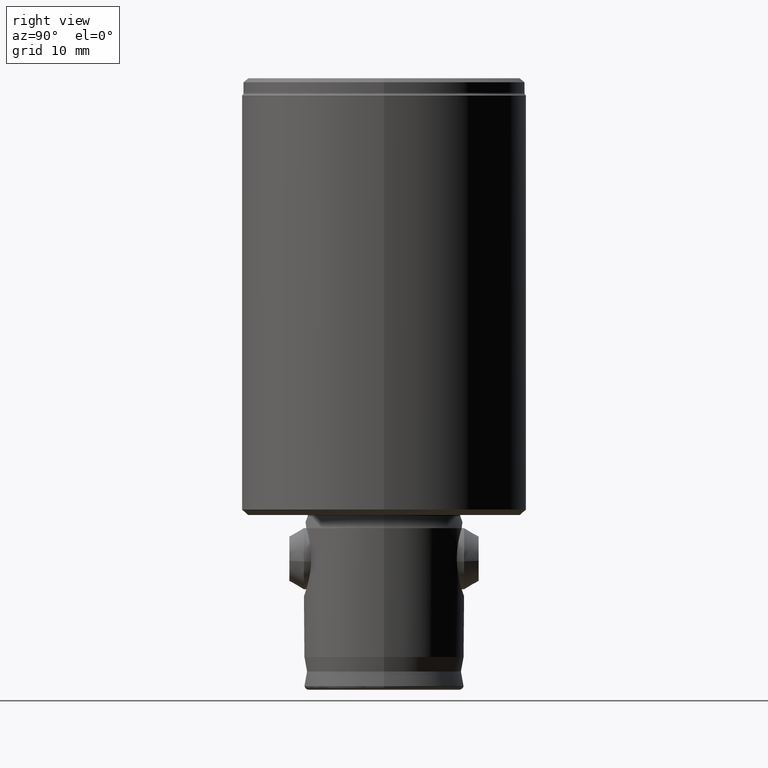
[diagram: clean part render]
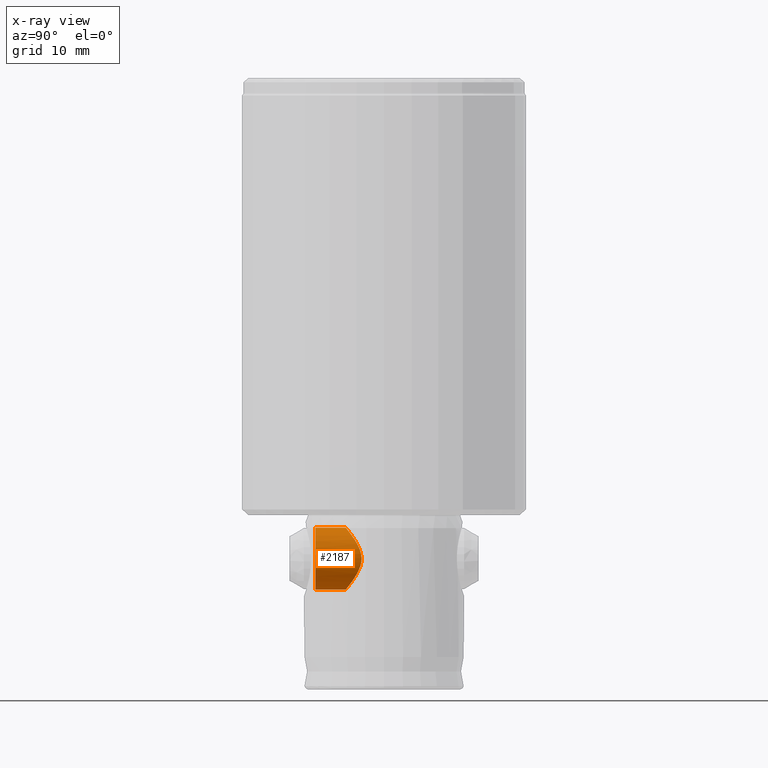
[diagram: x-ray — body ghosted, one internal face saturated and labeled with its STEP entity id]
A machine part, right view, then the same camera in x-ray: the body is ghosted and one INTERNAL B-rep face — a face not visible from any outside direction — is saturated and labeled: STEP entity #2187.
In plain terms, the highlighted cylindrical surface (edge-blend (fillet) strip) has radius 4.25 mm, axis along (0, 1, 0).
Its self-contained STEP definition (entity closure, byte-faithful):
#12 = CARTESIAN_POINT ( 'NONE',  ( 0.0000000000000000000, -9.449999999999985100, 70.25000000000000000 ) ) ;
#24 = VECTOR ( 'NONE', #2691, 1000.000000000000000 ) ;
#27 = CARTESIAN_POINT ( 'NONE',  ( -3.805140007228206200, -3.620558081587466500, 64.08790877519720700 ) ) ;
#43 = CARTESIAN_POINT ( 'NONE',  ( -3.802555898585062300, -3.623358960912436400, 67.91765052075953700 ) ) ;
#76 = EDGE_CURVE ( 'NONE', #950, #3685, #209, .T. ) ;
#188 = VECTOR ( 'NONE', #3668, 1000.000000000000000 ) ;
#209 = CIRCLE ( 'NONE', #4117, 4.250000000000003600 ) ;
#258 = DIRECTION ( 'NONE',  ( 0.0000000000000000000, 0.0000000000000000000, 1.000000000000000000 ) ) ;
#349 = AXIS2_PLACEMENT_3D ( 'NONE', #3172, #3155, #258 ) ;
#387 = CARTESIAN_POINT ( 'NONE',  ( -4.101942360848347000, -3.278067156894407800, 64.85190301792920300 ) ) ;
#410 = CARTESIAN_POINT ( 'NONE',  ( -3.384016203500814800, -4.018675673284333200, 68.58447498907671000 ) ) ;
#598 = B_SPLINE_CURVE_WITH_KNOTS ( 'NONE', 3,
 ( #2911, #1801, #2555, #743, #3289, #1102, #3672, #1478, #4028, #1834, #4402, #2197, #27, #2566, #387, #2927, #757, #3305, #1121, #3691, #1492, #4044, #1849, #4417, #2218, #43, #2590, #410, #2943, #778, #3324, #1139, #3709, #1517, #4058, #1869, #4441, #2233 ),
 .UNSPECIFIED., .F., .F.,
 ( 4, 2, 2, 2, 2, 2, 2, 2, 2, 2, 2, 2, 2, 2, 2, 2, 2, 2, 4 ),
 ( 0.01410543836558498600, 0.01498550517642567200, 0.01586557198726635700, 0.01674563879810704200, 0.01762570560894774100, 0.01850577241978843700, 0.01938583923062913200, 0.02026590604146983100, 0.02070593944689017700, 0.02114597285231052700, 0.02158600625773087600, 0.02202603966315122600, 0.02290610647399195900, 0.02378617328483269600, 0.02466624009567343300, 0.02554630690651416700, 0.02642637371735490800, 0.02730644052819564100, 0.02818650733903637800 ),
 .UNSPECIFIED. ) ;
#683 = EDGE_LOOP ( 'NONE', ( #999, #704, #1131, #1036 ) ) ;
#704 = ORIENTED_EDGE ( 'NONE', *, *, #3238, .T. ) ;
#726 = EDGE_CURVE ( 'NONE', #3685, #4709, #1968, .T. ) ;
#743 = CARTESIAN_POINT ( 'NONE',  ( -1.161812761381823700, -5.127953066911848300, 61.90156377740974800 ) ) ;
#757 = CARTESIAN_POINT ( 'NONE',  ( -4.211957720820634200, -3.134097915560381000, 65.41391805149531500 ) ) ;
#778 = CARTESIAN_POINT ( 'NONE',  ( -2.845765303101119900, -4.417718641411966900, 69.16778475850624400 ) ) ;
#950 = VERTEX_POINT ( 'NONE', #1698 ) ;
#999 = ORIENTED_EDGE ( 'NONE', *, *, #76, .F. ) ;
#1036 = ORIENTED_EDGE ( 'NONE', *, *, #726, .F. ) ;
#1096 = CARTESIAN_POINT ( 'NONE',  ( 5.204748896376254600E-016, -12.50000000000000000, 61.75000000000000000 ) ) ;
#1102 = CARTESIAN_POINT ( 'NONE',  ( -1.956577178225412900, -4.879471193580222600, 62.21659654320388500 ) ) ;
#1121 = CARTESIAN_POINT ( 'NONE',  ( -4.250122289926452800, -3.082038378269760200, 65.85609129833709100 ) ) ;
#1131 = ORIENTED_EDGE ( 'NONE', *, *, #1736, .T. ) ;
#1139 = CARTESIAN_POINT ( 'NONE',  ( -2.200958254134847800, -4.772874321613086200, 69.64562951974248500 ) ) ;
#1272 = CARTESIAN_POINT ( 'NONE',  ( 5.204752558545803100E-016, -5.249999999999987600, 61.75000000000000000 ) ) ;
#1439 = DIRECTION ( 'NONE',  ( 0.0000000000000000000, 1.000000000000000000, 0.0000000000000000000 ) ) ;
#1478 = CARTESIAN_POINT ( 'NONE',  ( -2.646459113657080300, -4.541240218687322600, 62.66331183352998100 ) ) ;
#1492 = CARTESIAN_POINT ( 'NONE',  ( -4.242097722270847800, -3.093180995056913600, 66.29753214740227900 ) ) ;
#1517 = CARTESIAN_POINT ( 'NONE',  ( -1.440018767704617000, -5.056134978504653400, 70.00867428595493900 ) ) ;
#1636 = CYLINDRICAL_SURFACE ( 'NONE', #349, 4.250000000000003600 ) ;
#1698 = CARTESIAN_POINT ( 'NONE',  ( 5.204748896376254600E-016, -9.449999999999985100, 61.75000000000000000 ) ) ;
#1736 = EDGE_CURVE ( 'NONE', #2051, #4709, #598, .T. ) ;
#1801 = CARTESIAN_POINT ( 'NONE',  ( -0.2938922589299744500, -5.249999999999988500, 61.74999999999997900 ) ) ;
#1834 = CARTESIAN_POINT ( 'NONE',  ( -3.218257064172426000, -4.154058835936596400, 63.21173248952477800 ) ) ;
#1849 = CARTESIAN_POINT ( 'NONE',  ( -4.188561257034566100, -3.165560579156568200, 66.73408338996000600 ) ) ;
#1869 = CARTESIAN_POINT ( 'NONE',  ( -0.5969456275745720400, -5.223984282207726300, 70.21797508858057300 ) ) ;
#1968 = LINE ( 'NONE', #4111, #24 ) ;
#2051 = VERTEX_POINT ( 'NONE', #1272 ) ;
#2187 = ADVANCED_FACE ( 'NONE', ( #2919 ), #1636, .F. ) ;
#2197 = CARTESIAN_POINT ( 'NONE',  ( -3.678832312834453800, -3.750799608839240100, 63.85545249885393600 ) ) ;
#2218 = CARTESIAN_POINT ( 'NONE',  ( -4.016393790635532000, -3.384781003260456200, 67.41611998085534200 ) ) ;
#2233 = CARTESIAN_POINT ( 'NONE',  ( -1.482028773410044900E-016, -5.249999999999987600, 70.25000000000000000 ) ) ;
#2555 = CARTESIAN_POINT ( 'NONE',  ( -0.5929985923406686500, -5.224372136289898300, 61.78154755477421400 ) ) ;
#2566 = CARTESIAN_POINT ( 'NONE',  ( -4.016253542323914500, -3.384854321906273000, 64.58405833088112000 ) ) ;
#2590 = CARTESIAN_POINT ( 'NONE',  ( -3.675707211355440300, -3.753730987829702900, 68.14947740883887700 ) ) ;
#2691 = DIRECTION ( 'NONE',  ( 0.0000000000000000000, 1.000000000000000000, 0.0000000000000000000 ) ) ;
#2911 = CARTESIAN_POINT ( 'NONE',  ( 5.204752558545803100E-016, -5.249999999999987600, 61.75000000000000000 ) ) ;
#2919 = FACE_OUTER_BOUND ( 'NONE', #683, .T. ) ;
#2927 = CARTESIAN_POINT ( 'NONE',  ( -4.189486154962600600, -3.164331621620047700, 65.27123720569224500 ) ) ;
#2943 = CARTESIAN_POINT ( 'NONE',  ( -3.218503548396092700, -4.154016497797617700, 68.78827461802463000 ) ) ;
#2954 = LINE ( 'NONE', #1096, #188 ) ;
#3147 = CARTESIAN_POINT ( 'NONE',  ( -1.482028773410044900E-016, -5.249999999999987600, 70.25000000000000000 ) ) ;
#3155 = DIRECTION ( 'NONE',  ( 0.0000000000000000000, 1.000000000000000000, 0.0000000000000000000 ) ) ;
#3172 = CARTESIAN_POINT ( 'NONE',  ( 0.0000000000000000000, -12.50000000000000000, 66.00000000000000000 ) ) ;
#3238 = EDGE_CURVE ( 'NONE', #950, #2051, #2954, .T. ) ;
#3289 = CARTESIAN_POINT ( 'NONE',  ( -1.438507202315987300, -5.056493885313891200, 61.99088126889034100 ) ) ;
#3305 = CARTESIAN_POINT ( 'NONE',  ( -4.242372805655344700, -3.092803027051105800, 65.70614141125429300 ) ) ;
#3324 = CARTESIAN_POINT ( 'NONE',  ( -2.642961415414695600, -4.543049799747636000, 69.33909969726735800 ) ) ;
#3636 = DIRECTION ( 'NONE',  ( 0.0000000000000000000, 0.0000000000000000000, 1.000000000000000000 ) ) ;
#3668 = DIRECTION ( 'NONE',  ( 0.0000000000000000000, 1.000000000000000000, 0.0000000000000000000 ) ) ;
#3672 = CARTESIAN_POINT ( 'NONE',  ( -2.197163833811852700, -4.774838180658177200, 62.35175318160779100 ) ) ;
#3685 = VERTEX_POINT ( 'NONE', #12 ) ;
#3691 = CARTESIAN_POINT ( 'NONE',  ( -4.249874715765452400, -3.082379753494835000, 66.15104335153026200 ) ) ;
#3709 = CARTESIAN_POINT ( 'NONE',  ( -1.960480188576818800, -4.877978310980641800, 69.78148661407333000 ) ) ;
#3994 = CARTESIAN_POINT ( 'NONE',  ( 0.0000000000000000000, -9.449999999999985100, 66.00000000000000000 ) ) ;
#4028 = CARTESIAN_POINT ( 'NONE',  ( -2.850084714601808700, -4.414793365845310900, 62.83635789624356200 ) ) ;
#4044 = CARTESIAN_POINT ( 'NONE',  ( -4.211582089719495800, -3.134603332964277700, 66.58863805992078300 ) ) ;
#4058 = CARTESIAN_POINT ( 'NONE',  ( -1.167863983061270500, -5.126641159677748600, 70.09679773081792600 ) ) ;
#4111 = CARTESIAN_POINT ( 'NONE',  ( 0.0000000000000000000, -12.50000000000000000, 70.25000000000000000 ) ) ;
#4117 = AXIS2_PLACEMENT_3D ( 'NONE', #3994, #1439, #3636 ) ;
#4402 = CARTESIAN_POINT ( 'NONE',  ( -3.383555643189605000, -4.019185999809322700, 63.41457114194440700 ) ) ;
#4417 = CARTESIAN_POINT ( 'NONE',  ( -4.100398918673254100, -3.280016073849001800, 67.15365680214168300 ) ) ;
#4441 = CARTESIAN_POINT ( 'NONE',  ( -0.2982891365068985300, -5.249999999999991100, 70.25000000000004300 ) ) ;
#4709 = VERTEX_POINT ( 'NONE', #3147 ) ;